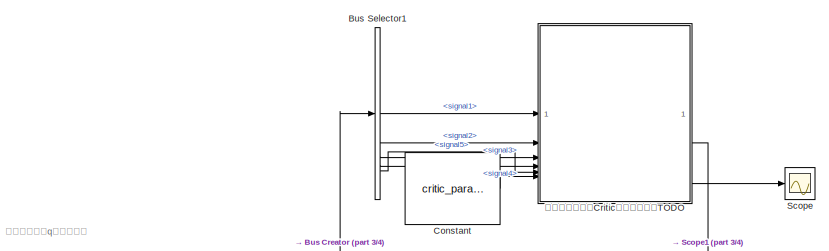
[diagram: root canvas - part 1/4, top right region]
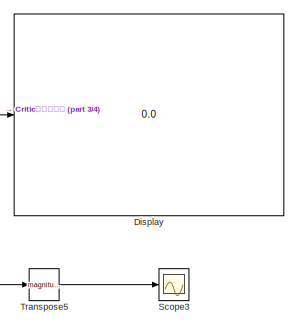
[diagram: root canvas - part 2/4, middle right region]
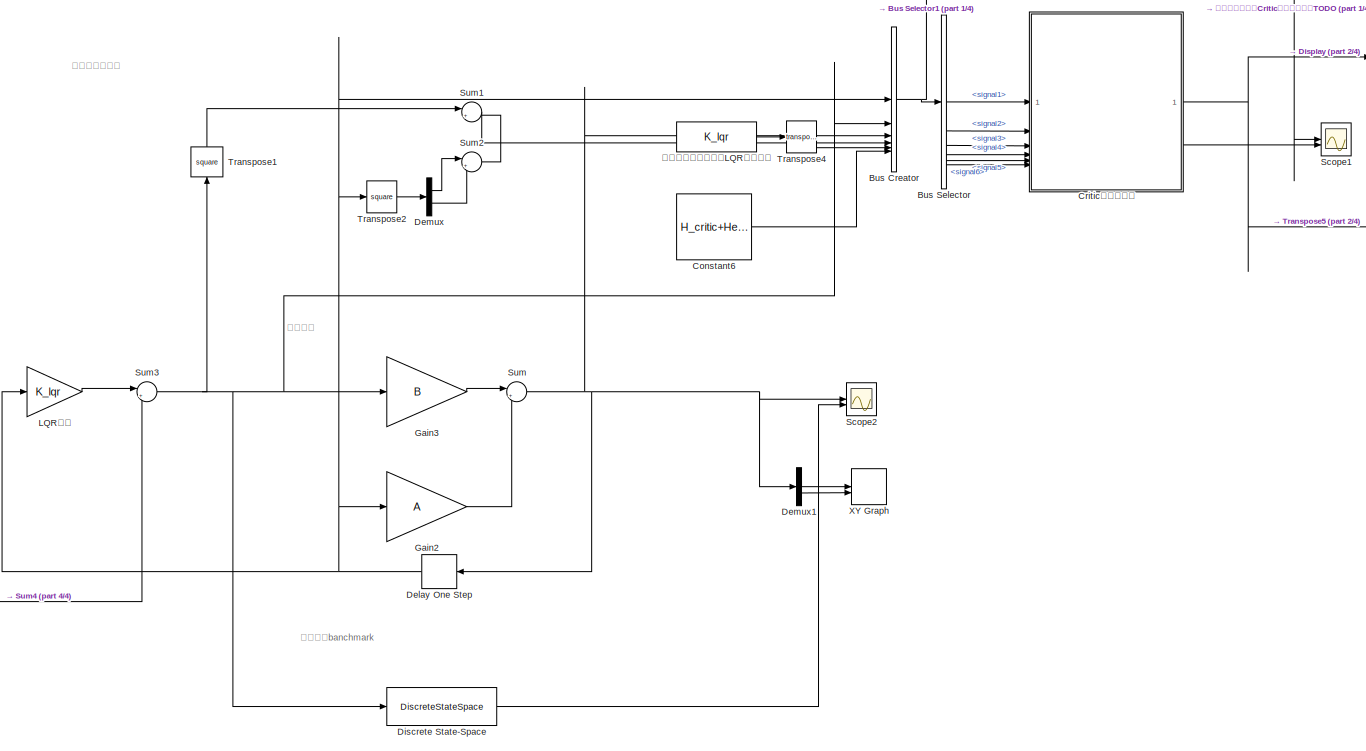
[diagram: root canvas - part 3/4, central region]
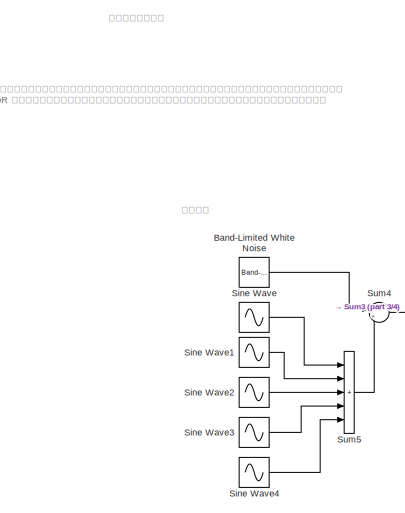
[diagram: root canvas - part 4/4, bottom left region]
MODEL slx_0b29ebeffb63
KIND model
CONFIG AbsTol = auto
CONFIG EnableMultiTasking = off
CONFIG FixedStep = 1e-3
CONFIG MaxStep = 1e-3
CONFIG MinStep = auto
CONFIG RelTol = 1e-3
CONFIG SampleTimeConstraint = Unconstrained
CONFIG SolverName = VariableStepAuto
CONFIG StartTime = 0.0
CONFIG StopTime = 60000
BLOCK [Reference] Band-Limited White Noise  REF=simulink/Sources/Band-Limited
White Noise
  SourceBlock = simulink/Sources/Band-Limited\nWhite Noise
  SourceType = Band-Limited White Noise.
BLOCK [BusCreator] Bus Creator
  DisplayOption = bar
  InheritFromInputs = on
  Inputs = 6
BLOCK [BusSelector] Bus Selector
  OutputSignals = signal1,signal2,signal3,signal4,signal5,signal6
BLOCK [BusSelector] Bus Selector1
  OutputSignals = signal1,signal2,signal3,signal4,signal5,signal6
BLOCK [Constant] Constant
  OutDataTypeStr = Bus: Critic_params_init
  Value = critic_params_init
BLOCK [Constant] Constant6
  Value = H_critic+Herror
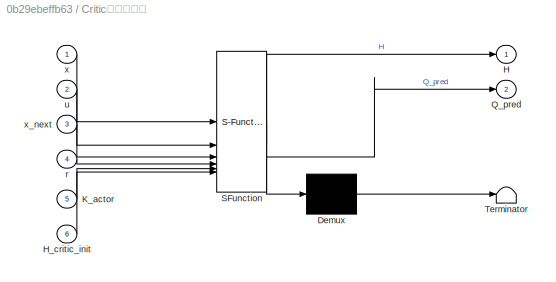
BLOCK [SubSystem] Critic的参数辨识
  ErrorFcn = Stateflow.Translate.translate
  PermitHierarchicalResolution = ExplicitOnly
  SFBlockType = MATLAB Function
  TreatAsAtomicUnit = on
BLOCK [Demux] Critic的参数辨识/ Demux 
  Outputs = 1
BLOCK [S-Function] Critic的参数辨识/ SFunction 
  EnableBusSupport = off
  FunctionName = sf_sfun
  PortCounts = [6 3]
  SFcnIsStateOwnerBlock = off
  SFunctionDeploymentMode = off
  Tag = Stateflow S-Function 1
BLOCK [Terminator] Critic的参数辨识/ Terminator 
BLOCK [Outport] Critic的参数辨识/H
BLOCK [Inport] Critic的参数辨识/H_critic_init
  Port = 6
BLOCK [Inport] Critic的参数辨识/K_actor
  Port = 5
BLOCK [Outport] Critic的参数辨识/Q_pred
  Port = 2
BLOCK [Inport] Critic的参数辨识/r
  Port = 4
BLOCK [Inport] Critic的参数辨识/u
  Port = 2
BLOCK [Inport] Critic的参数辨识/x
BLOCK [Inport] Critic的参数辨识/x_next
  Port = 3
BLOCK [Delay] Delay One Step
  DelayLength = 1
  InputPortMap = u0
  NameLocation = top
BLOCK [Demux] Demux
  Outputs = 2
BLOCK [Demux] Demux1
  Outputs = 2
BLOCK [DiscreteStateSpace] Discrete State-Space
  A = A
  B = B
  C = C
  D = zeros(size(B))
  SampleTime = -1
BLOCK [Display] Display
  Decimation = 1
BLOCK [Gain] Gain2
  Gain = A
  Multiplication = Matrix(K*u)
BLOCK [Gain] Gain3
  Gain = B
  Multiplication = Matrix(K*u)
BLOCK [Gain] LQR反馈
  Gain = K_lqr
  Multiplication = Matrix(K*u) (u vector)
BLOCK [Scope] Scope
  ActiveDisplayYMaximum = 2.88667538799109
  ActiveDisplayYMinimum = -25.98039415301082
  DataLoggingVariableName = ScopeData1
  Floating = off
  GraphicalSettings = {"AxesScalingProperties":{"AlignXAxis":"Center","AlignYAxis":"Center","AutoScaleXAxisLimits":false,"AxesScaling":"Manual","AxesScalingNumUpdates":10,"ExpandOnly":true,"ScaleAxesLimitsAtStop":false,"XAxisDataRange":100,"YAxisDataRange":80},"DisplayProperties":{"ColorOrder":["auto","auto","auto","auto","auto","auto","auto","auto","auto","auto","auto","auto","auto","auto","auto","auto","auto","auto",...<+1940ch>
  MultipleDisplayCache = [{"MaxYLimMag":25.98039415301082,"MaxYLimReal":2.88667538799109,"MinYLimMag":0,"MinYLimReal":-25.98039415301082,"PlotAsMagnitudePhase":false,"ShowGrid":true,"ShowLegend":false,"Title":"%<SignalLabel>","YLabel":""}]
  NumInputPorts = 1
  ScopeFrameLocation = window
  Visible = on
  WasSavedAsWebScope = on
  WindowPosition = [679.000000,63.000000,560.000000,420.000000,]
BLOCK [Scope] Scope1
  ActiveDisplayYMaximum = 176018.18725559552
  ActiveDisplayYMinimum = -19557.575427772863
  DataLoggingVariableName = ScopeData2
  Floating = off
  GraphicalSettings = {"AxesScalingProperties":{"AlignXAxis":"Center","AlignYAxis":"Center","AutoScaleXAxisLimits":false,"AxesScaling":"Manual","AxesScalingNumUpdates":10,"ExpandOnly":true,"ScaleAxesLimitsAtStop":false,"XAxisDataRange":100,"YAxisDataRange":80},"DisplayProperties":{"ColorOrder":["auto","auto","auto","auto","auto","auto","auto","auto","auto","auto","auto","auto","auto","auto","auto","auto","auto","auto",...<+2169ch>
  MultipleDisplayCache = [{"MaxYLimMag":176018.18725559552,"MaxYLimReal":176018.18725559552,"MinYLimMag":0,"MinYLimReal":-19557.575427772863,"PlotAsMagnitudePhase":false,"ShowGrid":true,"ShowLegend":false,"Title":"%<SignalLabel>","YLabel":""}]
  NumInputPorts = 2
  ScopeFrameLocation = window
  Visible = on
  WasSavedAsWebScope = on
  WindowPosition = [183.000000,303.000000,560.000000,414.000000,]
BLOCK [Scope] Scope2
  ActiveDisplayYMaximum = -0.038024155226569774
  ActiveDisplayYMinimum = -0.043537981572630356
  Floating = off
  GraphicalSettings = {"Style":{"BackgroundColor":[0.12941176470588237,0.12941176470588237,0.12941176470588237],"AxesColor":[0.07058823529411765,0.07058823529411765,0.07058823529411765],"LabelsColor":[0.8509803921568627,0.8509803921568627,0.8509803921568627],"PreserveColors":false,"Visible":[true,true,true,true],"LineStyle":["-","-","-","-"],"LineWidth":[1.5,1.5,1.5,1.5],"BarWidth":[0.9,0.9,0.9,0.9],"LineColor":["auto"...<+2408ch>
  MultipleDisplayCache = [{"MaxYLimMag":0.089283863876598077,"MaxYLimReal":-0.038024155226569774,"MinYLimMag":0,"MinYLimReal":-0.043537981572630356,"PlotAsMagnitudePhase":false,"ShowGrid":true,"ShowLegend":false,"Title":"%<SignalLabel>","YLabel":""}]
  NumInputPorts = 2
  ScopeFrameLocation = window
  WasSavedAsWebScope = on
  WindowPosition = [786.000000,197.000000,560.000000,420.000000,]
BLOCK [Scope] Scope3
  ActiveDisplayYMaximum = 39240.595408790767
  ActiveDisplayYMinimum = -4360.06615637184
  DataLoggingVariableName = ScopeData3
  Floating = off
  GraphicalSettings = {"AxesScalingProperties":{"AlignXAxis":"Center","AlignYAxis":"Center","AutoScaleXAxisLimits":false,"AxesScaling":"Manual","AxesScalingNumUpdates":10,"ExpandOnly":true,"ScaleAxesLimitsAtStop":false,"XAxisDataRange":100,"YAxisDataRange":80},"DisplayProperties":{"ColorOrder":["auto","auto","auto","auto","auto","auto","auto","auto","auto","auto","auto","auto","auto","auto","auto","auto","auto","auto",...<+2986ch>
  MultipleDisplayCache = [{"MaxYLimMag":10,"MaxYLimReal":39240.595408790767,"MinYLimMag":0,"MinYLimReal":-4360.06615637184,"PlotAsMagnitudePhase":false,"ShowGrid":true,"ShowLegend":false,"Title":"%<SignalLabel>","YLabel":""}]
  NumInputPorts = 1
  ScopeFrameLocation = window
  WasSavedAsWebScope = on
  WindowPosition = [816.000000,313.000000,560.000000,420.000000,]
BLOCK [Sin] Sine Wave
  Amplitude = 0.5
  Frequency = 0.6283
  SampleTime = 0
BLOCK [Sin] Sine Wave1
  Amplitude = 0.5
  Frequency = 6.2832
  Phase = 1.5708
  SampleTime = 0
BLOCK [Sin] Sine Wave2
  Amplitude = 0.1
  Frequency = 18.8496
  SampleTime = 0
BLOCK [Sin] Sine Wave3
  Amplitude = 0.1
  Frequency = 3.1416
  SampleTime = 0
BLOCK [Sin] Sine Wave4
  Amplitude = 0.1
  Frequency = 12.5664
  SampleTime = 0
BLOCK [Sum] Sum
  Inputs = |++
BLOCK [Sum] Sum1
  Inputs = |++
BLOCK [Sum] Sum2
  Inputs = |++
BLOCK [Sum] Sum3
  Inputs = |++
BLOCK [Sum] Sum4
  Inputs = |++
BLOCK [Sum] Sum5
  IconShape = rectangular
  Inputs = +++++
BLOCK [Math] Transpose1
  NameLocation = right
  Operator = square
BLOCK [Math] Transpose2
  Operator = square
BLOCK [Math] Transpose4
  Operator = transpose
BLOCK [Math] Transpose5
  Operator = magnitude^2
BLOCK [Record] XY Graph
  CompatibilityTag = XY
  FileSettingsInternal = {"entries":[{"content":{"excelSettings":{"content":{},"type":"Streamout.ExcelSettings"},"parquetSettings":{"content":{},"type":"Streamout.ParquetSettings"}},"type":"Streamout.FileSettingStorage","uuid":""}],"packageUris":["http:\/\/schema.mathworks.com\/mf0\/streamout_blocks\/R2020a"],"version":"1.0"}
  FrameSettings = [0, 0]
  Layout = [1 1]
  NumPorts = 2.0
  SignalsInternal = {"entries":[{"content":{"signals":[{"content":{"blockPath":[],"dimensions":[1],"domain":"","lineColor":"#a2142f","plots":[ 1 ],"port":1,"sid":[""],"signalID":1,"signalName":"Demux1:1"},"type":"RecordBlkView.Signal","uuid":""},{"content":{"blockPath":[],"dimensions":[1],"domain":"","lineColor":"#139fff","plots":[ 1 ],"port":2,"sid":[""],"signalID":2,"signalName":"Demux1:2"},"type":"RecordBlkView.Si...<+162ch>
  VisualizationBindings = {"xyplotplugin":{"info":[{"series":[{"bindingParametersList":[{"parameter":"X-Axis","signalID":1,"signalName":"Demux1:1"},{"parameter":"Y-Axis","signalID":2,"signalName":"Demux1:2"}],"seriesID":0}],"subplotID":1}]}}
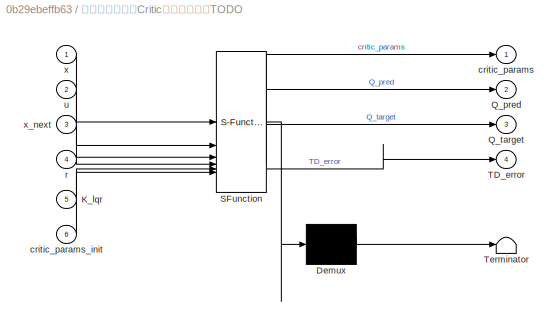
BLOCK [SubSystem] 基于神将网络的Critic暂时没有调参TODO
  ErrorFcn = Stateflow.Translate.translate
  PermitHierarchicalResolution = ExplicitOnly
  SFBlockType = MATLAB Function
  TreatAsAtomicUnit = on
BLOCK [Demux] 基于神将网络的Critic暂时没有调参TODO/ Demux 
  Outputs = 1
BLOCK [S-Function] 基于神将网络的Critic暂时没有调参TODO/ SFunction 
  EnableBusSupport = off
  FunctionName = sf_sfun
  PortCounts = [6 5]
  SFcnIsStateOwnerBlock = off
  SFunctionDeploymentMode = off
  Tag = Stateflow S-Function 2
BLOCK [Terminator] 基于神将网络的Critic暂时没有调参TODO/ Terminator 
BLOCK [Inport] 基于神将网络的Critic暂时没有调参TODO/K_lqr
  Port = 5
BLOCK [Outport] 基于神将网络的Critic暂时没有调参TODO/Q_pred
  Port = 2
BLOCK [Outport] 基于神将网络的Critic暂时没有调参TODO/Q_target
  Port = 3
BLOCK [Outport] 基于神将网络的Critic暂时没有调参TODO/TD_error
  Port = 4
BLOCK [Outport] 基于神将网络的Critic暂时没有调参TODO/critic_params
BLOCK [Inport] 基于神将网络的Critic暂时没有调参TODO/critic_params_init
  Port = 6
BLOCK [Inport] 基于神将网络的Critic暂时没有调参TODO/r
  Port = 4
BLOCK [Inport] 基于神将网络的Critic暂时没有调参TODO/u
  Port = 2
BLOCK [Inport] 基于神将网络的Critic暂时没有调参TODO/x
BLOCK [Inport] 基于神将网络的Critic暂时没有调参TODO/x_next
  Port = 3
BLOCK [Constant] 理论解析求解得到的LQR反馈矩阵
  Value = K_lqr
ANNOTATION (root): 线性系统
ANNOTATION (root): 动作价值函数q的系统辨识
ANNOTATION (root): 噪声功率不能太大，否则由于采样周期有限，功率过大会出现很大的跳变；也不能太小，太小频谱带宽小，辨识线性相关 LQR 应该李雅普诺夫稳定，但是由于离散化后，整个系统性质变了，故在过大的激励功率的情况下会不稳定
ANNOTATION (root): 当前步瞬时奖励
ANNOTATION (root): 真实物理系统部分
ANNOTATION (root): 线性系统banchmark
ANNOTATION (root): 输入激励
LINE Band-Limited White Noise:1 -> Sum4:1
NET Bus Creator:1 -> Bus Selector1:1, Bus Selector:1
LINE Bus Selector1:1 -> 基于神将网络的Critic暂时没有调参TODO:1
LINE Bus Selector1:2 -> 基于神将网络的Critic暂时没有调参TODO:2
LINE Bus Selector1:3 -> 基于神将网络的Critic暂时没有调参TODO:3
LINE Bus Selector1:4 -> 基于神将网络的Critic暂时没有调参TODO:4
LINE Bus Selector1:5 -> 基于神将网络的Critic暂时没有调参TODO:5
LINE Bus Selector:1 -> Critic的参数辨识:1
LINE Bus Selector:2 -> Critic的参数辨识:2
LINE Bus Selector:3 -> Critic的参数辨识:3
LINE Bus Selector:4 -> Critic的参数辨识:4
LINE Bus Selector:5 -> Critic的参数辨识:5
LINE Bus Selector:6 -> Critic的参数辨识:6
LINE Constant6:1 -> Bus Creator:6
LINE Constant:1 -> 基于神将网络的Critic暂时没有调参TODO:6
NET Critic的参数辨识:1 -> Display:1, Transpose5:1
LINE Critic的参数辨识:2 -> Scope1:2
NET Delay One Step:1 -> Bus Creator:1, Gain2:1, LQR反馈:1, Transpose2:1
LINE Demux1:1 -> XY Graph:1
LINE Demux1:2 -> XY Graph:2
LINE Demux:1 -> Sum2:1
LINE Demux:2 -> Sum2:2
LINE Discrete State-Space:1 -> Scope2:2
LINE Gain2:1 -> Sum:2
LINE Gain3:1 -> Sum:1
LINE LQR反馈:1 -> Sum3:1
LINE Sine Wave1:1 -> Sum5:2
LINE Sine Wave2:1 -> Sum5:3
LINE Sine Wave3:1 -> Sum5:4
LINE Sine Wave4:1 -> Sum5:5
LINE Sine Wave:1 -> Sum5:1
LINE Sum1:1 -> Bus Creator:4
LINE Sum2:1 -> Sum1:2
NET Sum3:1 -> Bus Creator:2, Discrete State-Space:1, Gain3:1, Transpose1:1
LINE Sum4:1 -> Sum3:2
LINE Sum5:1 -> Sum4:2
NET Sum:1 -> Bus Creator:3, Delay One Step:1, Demux1:1, Scope2:1
LINE Transpose1:1 -> Sum1:1
LINE Transpose2:1 -> Demux:1
LINE Transpose4:1 -> Bus Creator:5
LINE Transpose5:1 -> Scope3:1
LINE 基于神将网络的Critic暂时没有调参TODO:2 -> Scope1:1
LINE 基于神将网络的Critic暂时没有调参TODO:4 -> Scope:1
LINE 理论解析求解得到的LQR反馈矩阵:1 -> Transpose4:1
note: NET lines group one-source signal fan-out (src -> all destinations, sorted); 1:1 wires keep LINE
CHART Critic的参数辨识 states=1 transitions=1
  STATE_LABEL 'eML_blk_kernel()'
  STATE_LABEL 'SCRIPT:\nfunction [H,Q_pred] = Critic(x, u, x_next, r, K_actor, H_critic_init)\n \n    persistent H_critic  % 生命周期持续到仿真结束\n    if isempty(H_critic)\n        H_critic = H_critic_init;  % 用输入端口设置初值\n    end\n\n    gamma = 1;\n    alpha_critic = 0.005;\n    % 更新 Critic (Policy Evaluation, TD-Learning) ---\n    \n    z = [x; u];\n    \n    % 目标策略 (Target Policy): 评估当前 Actor 的纯策略 (无噪声)\n    u_next = -K_actor * x_next...<+475ch>'
CHART 基于神将网络的Critic暂时没有调参TODO states=1 transitions=1
  STATE_LABEL 'eML_blk_kernel()'
  STATE_LABEL 'SCRIPT:\nfunction [critic_params, Q_pred, Q_target, TD_error] = NeuralCritic(x, u, x_next, r, K_lqr, critic_params_init)\n% 神经网络 Critic\n% 输入:\n%   x - 当前状态\n%   u - 当前动作\n%   x_next - 下一状态\n%   r - 当前奖励\n%   actor_params - Actor 网络参数\n%   critic_params_init - Critic 网络初始参数\n% 输出:\n%   critic_params - 更新后的 Critic 参数\n%   Q_pred - 当前状态-动作对的 Q 值预测\n%   Q_target - 目标 Q 值\n%   TD_error - 时序差分误差\n\npersistent critic_p...<+2154ch>'
CHART  states=0 transitions=0
CHART  states=0 transitions=0
